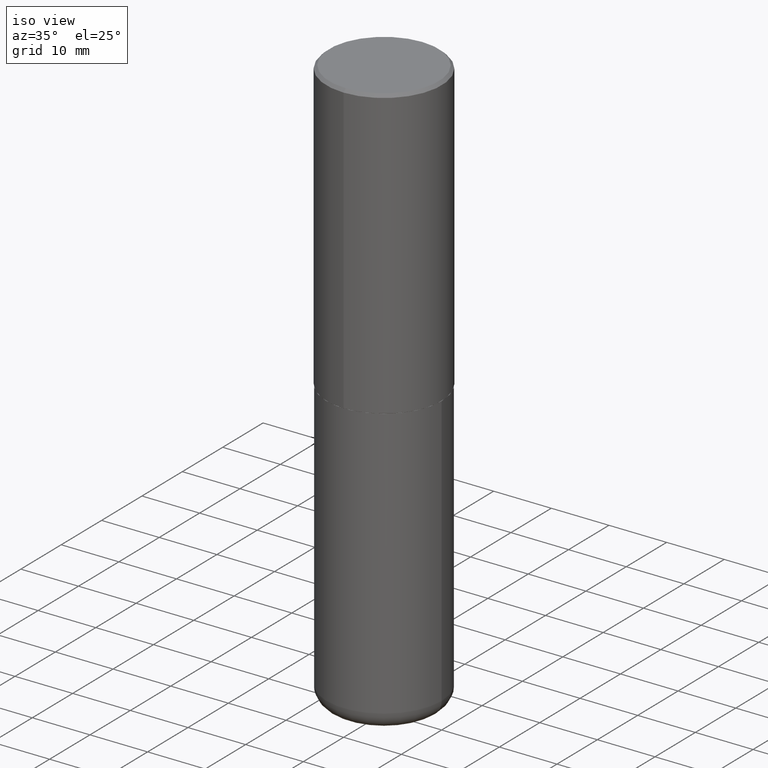
[diagram: clean part render]
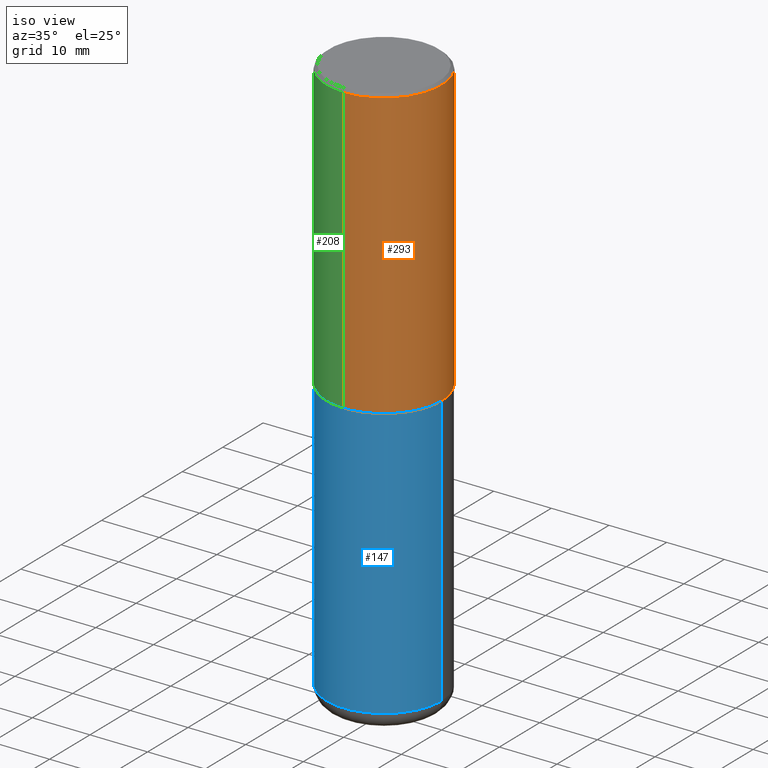
[diagram: same view with three faces highlighted in distinct colors, each labeled with its STEP entity id]
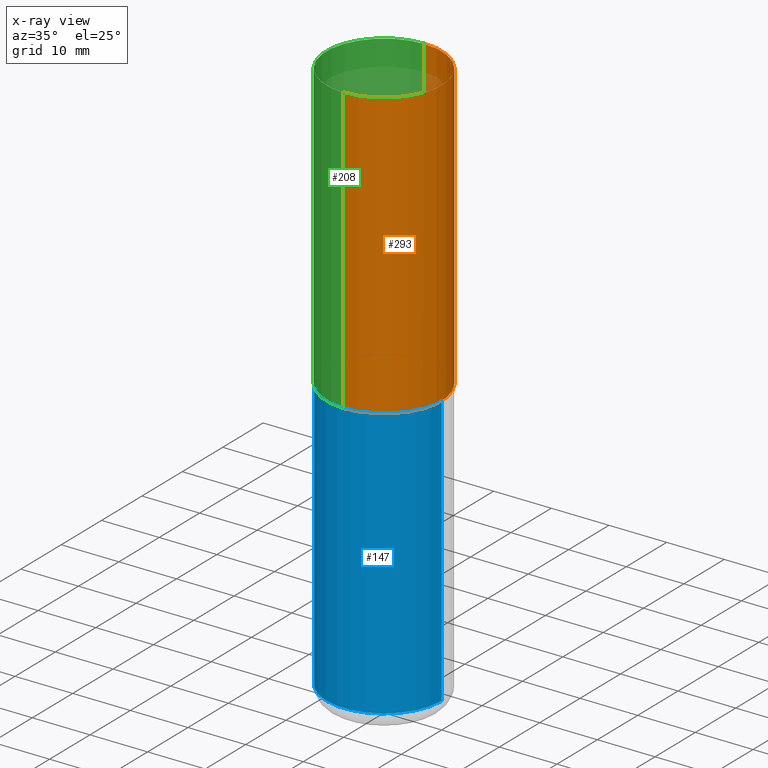
[diagram: x-ray of the same camera — body ghosted, the three highlighted faces saturated]
A machine part, iso view with three faces highlighted in distinct colors.
The next image is the same camera in x-ray (body ghosted, the three faces saturated) — at least one of them is partly hidden behind the body in this view.
Their STEP definitions:

[orange] entity #293 — the highlighted cylindrical surface (partial cylindrical patch) has radius 10 mm, axis along (-0, 0, 1).
#12 = AXIS2_PLACEMENT_3D ( 'NONE', #68, #192, #317 ) ;
#35 = VERTEX_POINT ( 'NONE', #415 ) ;
#51 = VERTEX_POINT ( 'NONE', #281 ) ;
#56 = CARTESIAN_POINT ( 'NONE',  ( 2.749192406205083217E-15, 0.3936999999999999389, -0.02000000000000146105 ) ) ;
#59 = EDGE_CURVE ( 'NONE', #51, #35, #249, .T. ) ;
#66 = DIRECTION ( 'NONE',  ( -2.447902336346030930E-29, 3.487996385144809755E-15, 1.000000000000000000 ) ) ;
#68 = CARTESIAN_POINT ( 'NONE',  ( 4.895804672692082949E-31, -6.975992770289649092E-17, -0.02000000000000008715 ) ) ;
#69 = FACE_OUTER_BOUND ( 'NONE', #188, .T. ) ;
#73 = DIRECTION ( 'NONE',  ( -2.447902336346030930E-29, 3.487996385144809360E-15, 1.000000000000000000 ) ) ;
#78 = VERTEX_POINT ( 'NONE', #56 ) ;
#99 = DIRECTION ( 'NONE',  ( -2.447902336346030930E-29, 3.487996385144809755E-15, 1.000000000000000000 ) ) ;
#103 = CARTESIAN_POINT ( 'NONE',  ( 2.797406750687515181E-15, 0.3937000000000001609, -1.373224176831512065E-15 ) ) ;
#104 = EDGE_CURVE ( 'NONE', #35, #78, #143, .T. ) ;
#132 = ORIENTED_EDGE ( 'NONE', *, *, #361, .T. ) ;
#143 = CIRCLE ( 'NONE', #12, 0.3937000000000000499 ) ;
#145 = CARTESIAN_POINT ( 'NONE',  ( 0.000000000000000000, 0.000000000000000000, 0.000000000000000000 ) ) ;
#162 = DIRECTION ( 'NONE',  ( -2.447902336346030930E-29, 3.487996385144809360E-15, 1.000000000000000000 ) ) ;
#188 = EDGE_LOOP ( 'NONE', ( #196, #132, #325, #279 ) ) ;
#192 = DIRECTION ( 'NONE',  ( -2.447902336346030930E-29, 3.487996385144809755E-15, 1.000000000000000000 ) ) ;
#196 = ORIENTED_EDGE ( 'NONE', *, *, #353, .T. ) ;
#237 = CARTESIAN_POINT ( 'NONE',  ( 4.816247846760815671E-29, -6.862632887772413316E-15, -1.967500000000000027 ) ) ;
#238 = VECTOR ( 'NONE', #73, 39.37007874015748143 ) ;
#249 = LINE ( 'NONE', #371, #381 ) ;
#259 = DIRECTION ( 'NONE',  ( -6.982962677686265922E-15, -1.000000000000000000, 3.469453890861393601E-15 ) ) ;
#260 = AXIS2_PLACEMENT_3D ( 'NONE', #145, #99, #385 ) ;
#279 = ORIENTED_EDGE ( 'NONE', *, *, #59, .F. ) ;
#281 = CARTESIAN_POINT ( 'NONE',  ( -2.749192406205036674E-15, -0.3937000000000070998, -1.967499999999998694 ) ) ;
#286 = CARTESIAN_POINT ( 'NONE',  ( 2.797406750687540030E-15, 0.3936999999999934441, -1.967500000000001359 ) ) ;
#293 = ADVANCED_FACE ( 'NONE', ( #69 ), #359, .T. ) ;
#317 = DIRECTION ( 'NONE',  ( -6.982962677686265133E-15, -1.000000000000000000, 3.491137977679279424E-15 ) ) ;
#325 = ORIENTED_EDGE ( 'NONE', *, *, #104, .F. ) ;
#353 = EDGE_CURVE ( 'NONE', #51, #367, #416, .T. ) ;
#359 = CYLINDRICAL_SURFACE ( 'NONE', #260, 0.3937000000000001609 ) ;
#361 = EDGE_CURVE ( 'NONE', #367, #78, #386, .T. ) ;
#367 = VERTEX_POINT ( 'NONE', #286 ) ;
#370 = AXIS2_PLACEMENT_3D ( 'NONE', #237, #66, #259 ) ;
#371 = CARTESIAN_POINT ( 'NONE',  ( -2.749192406205084005E-15, -0.3937000000000001609, 1.373224176831512065E-15 ) ) ;
#381 = VECTOR ( 'NONE', #162, 39.37007874015748143 ) ;
#385 = DIRECTION ( 'NONE',  ( -6.982962677686265922E-15, -1.000000000000000000, 3.487996385144809360E-15 ) ) ;
#386 = LINE ( 'NONE', #103, #238 ) ;
#415 = CARTESIAN_POINT ( 'NONE',  ( -2.700978061722651252E-15, -0.3937000000000001054, -0.01999999999999870978 ) ) ;
#416 = CIRCLE ( 'NONE', #370, 0.3937000000000002720 ) ;

[blue] entity #147 — the highlighted cylindrical surface (partial cylindrical patch) has radius 10 mm, axis along (-0, 0, 1).
#2 = LINE ( 'NONE', #202, #216 ) ;
#26 = EDGE_CURVE ( 'NONE', #348, #312, #384, .T. ) ;
#33 = DIRECTION ( 'NONE',  ( 1.000000000000000000, -6.982962677686265922E-15, 4.876176775795935793E-29 ) ) ;
#61 = VERTEX_POINT ( 'NONE', #228 ) ;
#75 = DIRECTION ( 'NONE',  ( -2.445468806185136597E-29, 3.491481338843145583E-15, 1.000000000000000000 ) ) ;
#79 = EDGE_CURVE ( 'NONE', #309, #348, #107, .T. ) ;
#90 = DIRECTION ( 'NONE',  ( -2.445468806185136597E-29, 3.491481338843145583E-15, 1.000000000000000000 ) ) ;
#93 = CARTESIAN_POINT ( 'NONE',  ( 9.339000823940418668E-29, -1.333361808490808928E-14, -3.818900000000000183 ) ) ;
#94 = ORIENTED_EDGE ( 'NONE', *, *, #302, .F. ) ;
#98 = DIRECTION ( 'NONE',  ( -2.445468806185136877E-29, 3.491481338843145188E-15, 1.000000000000000000 ) ) ;
#105 = CARTESIAN_POINT ( 'NONE',  ( 0.3937000000000000499, -1.608281049111317408E-14, -3.818900000000000183 ) ) ;
#107 = CIRCLE ( 'NONE', #159, 0.3937000000000000499 ) ;
#117 = CIRCLE ( 'NONE', #149, 0.3937000000000000499 ) ;
#135 = VECTOR ( 'NONE', #98, 39.37007874015748143 ) ;
#139 = ORIENTED_EDGE ( 'NONE', *, *, #322, .F. ) ;
#144 = DIRECTION ( 'NONE',  ( 1.000000000000000000, -6.982962677686265133E-15, 0.000000000000000000 ) ) ;
#147 = ADVANCED_FACE ( 'NONE', ( #165 ), #285, .T. ) ;
#149 = AXIS2_PLACEMENT_3D ( 'NONE', #235, #75, #144 ) ;
#159 = AXIS2_PLACEMENT_3D ( 'NONE', #93, #186, #409 ) ;
#165 = FACE_OUTER_BOUND ( 'NONE', #408, .T. ) ;
#169 = CARTESIAN_POINT ( 'NONE',  ( -0.3937000000000000499, -1.053621133422057529E-14, -3.818900000000000183 ) ) ;
#186 = DIRECTION ( 'NONE',  ( -2.445468806185136597E-29, 3.491481338843145583E-15, 1.000000000000000000 ) ) ;
#195 = CARTESIAN_POINT ( 'NONE',  ( 0.3937000000000000499, -9.622173421717814924E-15, -1.968500000000000139 ) ) ;
#202 = CARTESIAN_POINT ( 'NONE',  ( -0.3937000000000000499, 2.797406750687514786E-15, -1.936584745033356735E-29 ) ) ;
#216 = VECTOR ( 'NONE', #296, 39.37007874015748143 ) ;
#228 = CARTESIAN_POINT ( 'NONE',  ( -0.3937000000000000499, -7.305892799522895709E-15, -1.968500000000000139 ) ) ;
#235 = CARTESIAN_POINT ( 'NONE',  ( 4.813905344975441835E-29, -6.872981015512731707E-15, -1.968500000000000139 ) ) ;
#244 = AXIS2_PLACEMENT_3D ( 'NONE', #374, #90, #33 ) ;
#267 = ORIENTED_EDGE ( 'NONE', *, *, #26, .T. ) ;
#285 = CYLINDRICAL_SURFACE ( 'NONE', #244, 0.3937000000000000499 ) ;
#296 = DIRECTION ( 'NONE',  ( -2.445468806185136877E-29, 3.491481338843145188E-15, 1.000000000000000000 ) ) ;
#302 = EDGE_CURVE ( 'NONE', #61, #312, #117, .T. ) ;
#309 = VERTEX_POINT ( 'NONE', #169 ) ;
#312 = VERTEX_POINT ( 'NONE', #195 ) ;
#314 = CARTESIAN_POINT ( 'NONE',  ( 0.3937000000000000499, -2.749192406205083217E-15, 1.919750796630860172E-29 ) ) ;
#322 = EDGE_CURVE ( 'NONE', #309, #61, #2, .T. ) ;
#348 = VERTEX_POINT ( 'NONE', #105 ) ;
#374 = CARTESIAN_POINT ( 'NONE',  ( 0.000000000000000000, 0.000000000000000000, 0.000000000000000000 ) ) ;
#384 = LINE ( 'NONE', #314, #135 ) ;
#408 = EDGE_LOOP ( 'NONE', ( #139, #417, #267, #94 ) ) ;
#409 = DIRECTION ( 'NONE',  ( 1.000000000000000000, -6.982962677686267499E-15, 0.000000000000000000 ) ) ;
#417 = ORIENTED_EDGE ( 'NONE', *, *, #79, .T. ) ;

[green] entity #208 — the highlighted cylindrical surface (partial cylindrical patch) has radius 10 mm, axis along (-0, 0, 1).
#35 = VERTEX_POINT ( 'NONE', #415 ) ;
#51 = VERTEX_POINT ( 'NONE', #281 ) ;
#56 = CARTESIAN_POINT ( 'NONE',  ( 2.749192406205083217E-15, 0.3936999999999999389, -0.02000000000000146105 ) ) ;
#59 = EDGE_CURVE ( 'NONE', #51, #35, #249, .T. ) ;
#73 = DIRECTION ( 'NONE',  ( -2.447902336346030930E-29, 3.487996385144809360E-15, 1.000000000000000000 ) ) ;
#78 = VERTEX_POINT ( 'NONE', #56 ) ;
#103 = CARTESIAN_POINT ( 'NONE',  ( 2.797406750687515181E-15, 0.3937000000000001609, -1.373224176831512065E-15 ) ) ;
#111 = ORIENTED_EDGE ( 'NONE', *, *, #142, .T. ) ;
#126 = DIRECTION ( 'NONE',  ( -2.447902336346030930E-29, 3.487996385144809755E-15, 1.000000000000000000 ) ) ;
#127 = DIRECTION ( 'NONE',  ( -6.982962677686265922E-15, -1.000000000000000000, 3.487996385144809360E-15 ) ) ;
#142 = EDGE_CURVE ( 'NONE', #367, #51, #168, .T. ) ;
#162 = DIRECTION ( 'NONE',  ( -2.447902336346030930E-29, 3.487996385144809360E-15, 1.000000000000000000 ) ) ;
#167 = CARTESIAN_POINT ( 'NONE',  ( 0.000000000000000000, 0.000000000000000000, 0.000000000000000000 ) ) ;
#168 = CIRCLE ( 'NONE', #270, 0.3937000000000002720 ) ;
#171 = AXIS2_PLACEMENT_3D ( 'NONE', #231, #357, #201 ) ;
#177 = EDGE_LOOP ( 'NONE', ( #215, #111, #246, #400 ) ) ;
#201 = DIRECTION ( 'NONE',  ( -6.982962677686265133E-15, -1.000000000000000000, 3.491137977679279424E-15 ) ) ;
#208 = ADVANCED_FACE ( 'NONE', ( #257 ), #323, .T. ) ;
#215 = ORIENTED_EDGE ( 'NONE', *, *, #361, .F. ) ;
#231 = CARTESIAN_POINT ( 'NONE',  ( 4.895804672692082949E-31, -6.975992770289649092E-17, -0.02000000000000008715 ) ) ;
#238 = VECTOR ( 'NONE', #73, 39.37007874015748143 ) ;
#246 = ORIENTED_EDGE ( 'NONE', *, *, #59, .T. ) ;
#248 = DIRECTION ( 'NONE',  ( -2.447902336346030930E-29, 3.487996385144809755E-15, 1.000000000000000000 ) ) ;
#249 = LINE ( 'NONE', #371, #381 ) ;
#252 = DIRECTION ( 'NONE',  ( -6.982962677686265922E-15, -1.000000000000000000, 3.469453890861393601E-15 ) ) ;
#257 = FACE_OUTER_BOUND ( 'NONE', #177, .T. ) ;
#270 = AXIS2_PLACEMENT_3D ( 'NONE', #277, #126, #252 ) ;
#277 = CARTESIAN_POINT ( 'NONE',  ( 4.816247846760815671E-29, -6.862632887772413316E-15, -1.967500000000000027 ) ) ;
#281 = CARTESIAN_POINT ( 'NONE',  ( -2.749192406205036674E-15, -0.3937000000000070998, -1.967499999999998694 ) ) ;
#286 = CARTESIAN_POINT ( 'NONE',  ( 2.797406750687540030E-15, 0.3936999999999934441, -1.967500000000001359 ) ) ;
#323 = CYLINDRICAL_SURFACE ( 'NONE', #360, 0.3937000000000001609 ) ;
#352 = CIRCLE ( 'NONE', #171, 0.3937000000000000499 ) ;
#357 = DIRECTION ( 'NONE',  ( -2.447902336346030930E-29, 3.487996385144809755E-15, 1.000000000000000000 ) ) ;
#360 = AXIS2_PLACEMENT_3D ( 'NONE', #167, #248, #127 ) ;
#361 = EDGE_CURVE ( 'NONE', #367, #78, #386, .T. ) ;
#367 = VERTEX_POINT ( 'NONE', #286 ) ;
#371 = CARTESIAN_POINT ( 'NONE',  ( -2.749192406205084005E-15, -0.3937000000000001609, 1.373224176831512065E-15 ) ) ;
#381 = VECTOR ( 'NONE', #162, 39.37007874015748143 ) ;
#386 = LINE ( 'NONE', #103, #238 ) ;
#389 = EDGE_CURVE ( 'NONE', #78, #35, #352, .T. ) ;
#400 = ORIENTED_EDGE ( 'NONE', *, *, #389, .F. ) ;
#415 = CARTESIAN_POINT ( 'NONE',  ( -2.700978061722651252E-15, -0.3937000000000001054, -0.01999999999999870978 ) ) ;